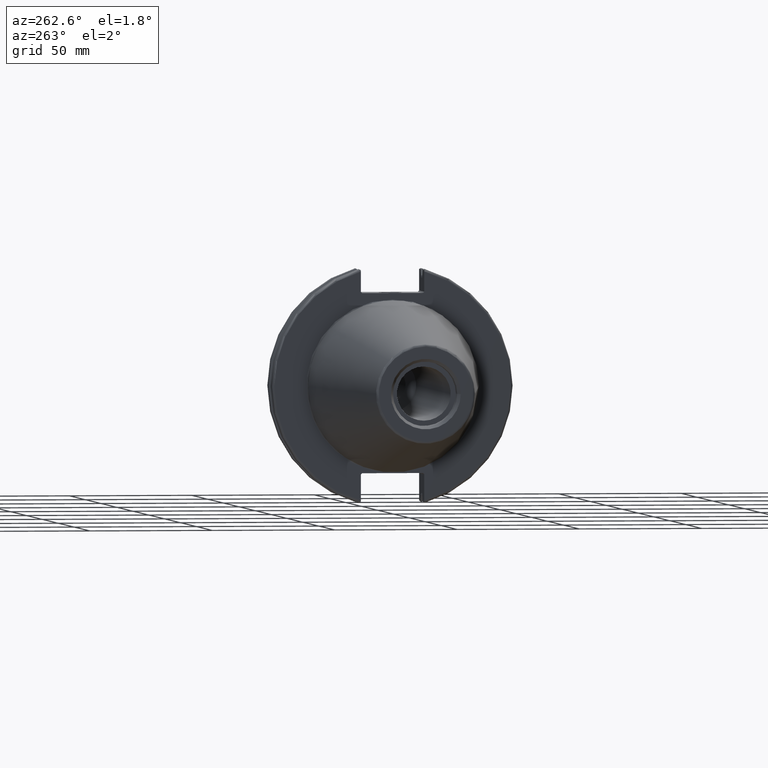
[diagram: clean part render]
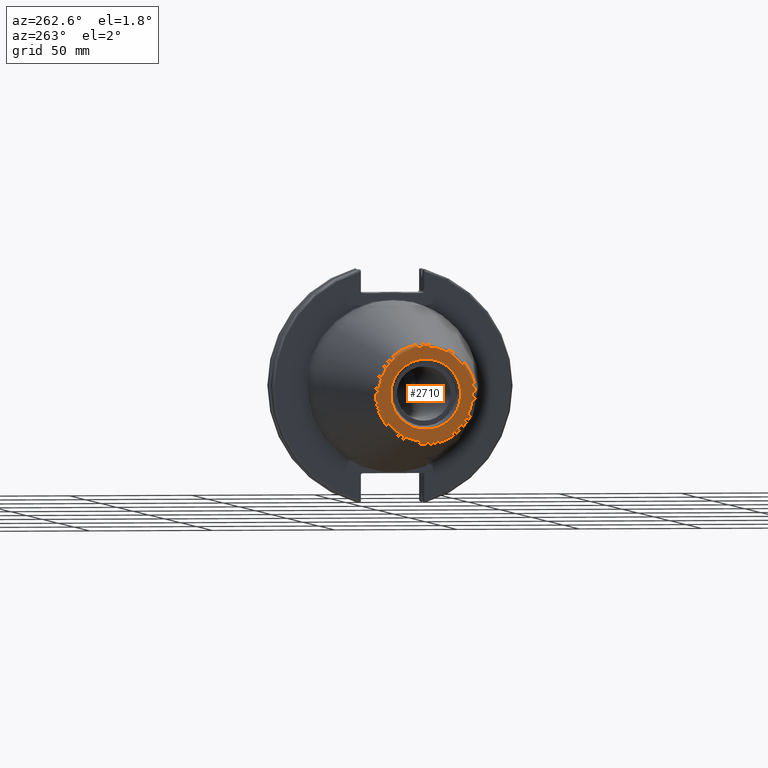
[diagram: same view with one face highlighted and labeled with its STEP entity id]
A machine part, auxiliary view. The second image highlights one B-rep face of the part: STEP entity #2710.
In plain terms, the highlighted planar face has unit normal (-1, 0, 0).
Its self-contained STEP definition (entity closure, byte-faithful):
#435=FACE_BOUND('',#717,.T.);
#460=PLANE('',#3100);
#558=FACE_OUTER_BOUND('',#716,.T.);
#716=EDGE_LOOP('',(#2099));
#717=EDGE_LOOP('',(#2100));
#1273=CIRCLE('',#3099,19.2435889303637);
#1274=CIRCLE('',#3101,14.2875);
#1435=VERTEX_POINT('',#4593);
#1436=VERTEX_POINT('',#4597);
#1690=EDGE_CURVE('',#1435,#1435,#1273,.T.);
#1691=EDGE_CURVE('',#1436,#1436,#1274,.T.);
#2099=ORIENTED_EDGE('',*,*,#1690,.F.);
#2100=ORIENTED_EDGE('',*,*,#1691,.T.);
#2710=ADVANCED_FACE('',(#558,#435),#460,.T.);
#3099=AXIS2_PLACEMENT_3D('',#4595,#3554,#3555);
#3100=AXIS2_PLACEMENT_3D('',#4596,#3556,#3557);
#3101=AXIS2_PLACEMENT_3D('',#4598,#3558,#3559);
#3554=DIRECTION('center_axis',(1.,0.,0.));
#3555=DIRECTION('ref_axis',(0.,-1.,1.83697019872103E-16));
#3556=DIRECTION('center_axis',(-1.,0.,0.));
#3557=DIRECTION('ref_axis',(0.,0.,1.));
#3558=DIRECTION('center_axis',(1.,0.,0.));
#3559=DIRECTION('ref_axis',(0.,0.,-1.));
#4593=CARTESIAN_POINT('',(-101.6,-2.35665995876774E-15,19.2435889303637));
#4595=CARTESIAN_POINT('Origin',(-101.6,0.,0.));
#4596=CARTESIAN_POINT('Origin',(-101.6,20.1083333333333,0.));
#4597=CARTESIAN_POINT('',(-101.6,-14.2875,-1.74971411428178E-15));
#4598=CARTESIAN_POINT('Origin',(-101.6,0.,0.));